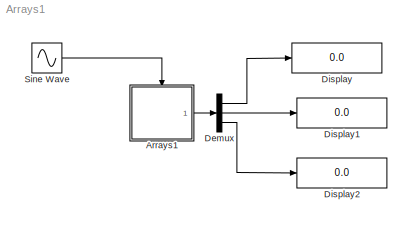
MODEL Arrays1
KIND model
CONFIG AbsTol = auto
CONFIG FixedStep = auto
CONFIG MaxStep = auto
CONFIG MinStep = auto
CONFIG RelTol = 1e-3
CONFIG Solver = FixedStepDiscrete
CONFIG SolverMode = Auto
CONFIG StartTime = 0.0
CONFIG StopTime = 10000.0
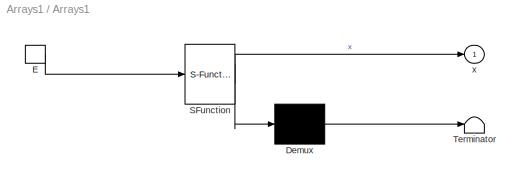
BLOCK [SubSystem] Arrays1
  MaskDescription = Stateflow diagram
  MaskDisplay = plot(sf('Private','sfblk','xIcon'),sf('Private','sfblk','yIcon'));text(0.5,0,sf('Private', 'sfblk', 'tIcon'),'HorizontalAl','Center','VerticalAl','Bottom');
  MaskIconFrame = off
  MaskIconOpaque = off
  MaskIconRotate = none
  MaskIconUnits = autoscale
  MaskSelfModifiable = on
  MaskType = Stateflow
  Ports = [0, 1, 0, 1]
  TreatAsAtomicUnit = off
BLOCK [Demux] Arrays1/ Demux 
  Outputs = 1
  Ports = [1, 1]
BLOCK [S-Function] Arrays1/ SFunction 
  FunctionName = sf_sfun
  PortCounts = [1 2]
  Ports = [1, 2]
  Tag = Stateflow S-Function Arrays1 1
BLOCK [Terminator] Arrays1/ Terminator 
BLOCK [TriggerPort] Arrays1/E
  Ports = [0, 1]
  ShowOutputPort = on
BLOCK [Outport] Arrays1/x
BLOCK [Demux] Demux
  Outputs = 3
  Ports = [1, 3]
BLOCK [Display] Display
  Decimation = 1
  Ports = [1]
BLOCK [Display] Display1
  Decimation = 1
  Ports = [1]
BLOCK [Display] Display2
  Decimation = 1
  Ports = [1]
BLOCK [Sin] Sine Wave
  SampleTime = 0
  SineType = Time based
LINE Arrays1/ Demux :1 -> Arrays1/ Terminator :1
LINE Arrays1/ SFunction :1 -> Arrays1/ Demux :1
LINE Arrays1/ SFunction :2 -> Arrays1/x:1
LINE Arrays1/E:1 -> Arrays1/ SFunction :1
LINE Arrays1:1 -> Demux:1
LINE Demux:1 -> Display:1
LINE Demux:2 -> Display1:1
LINE Demux:3 -> Display2:1
LINE Sine Wave:1 -> Arrays1:trigger
CHART Arrays1 states=3 transitions=4
  STATE_LABEL 'A/\\nen:x[1]++;'
  STATE_LABEL 'B/\\nen:x[2]++;'
  STATE_LABEL 'C/\\nen:x[3]++;'
